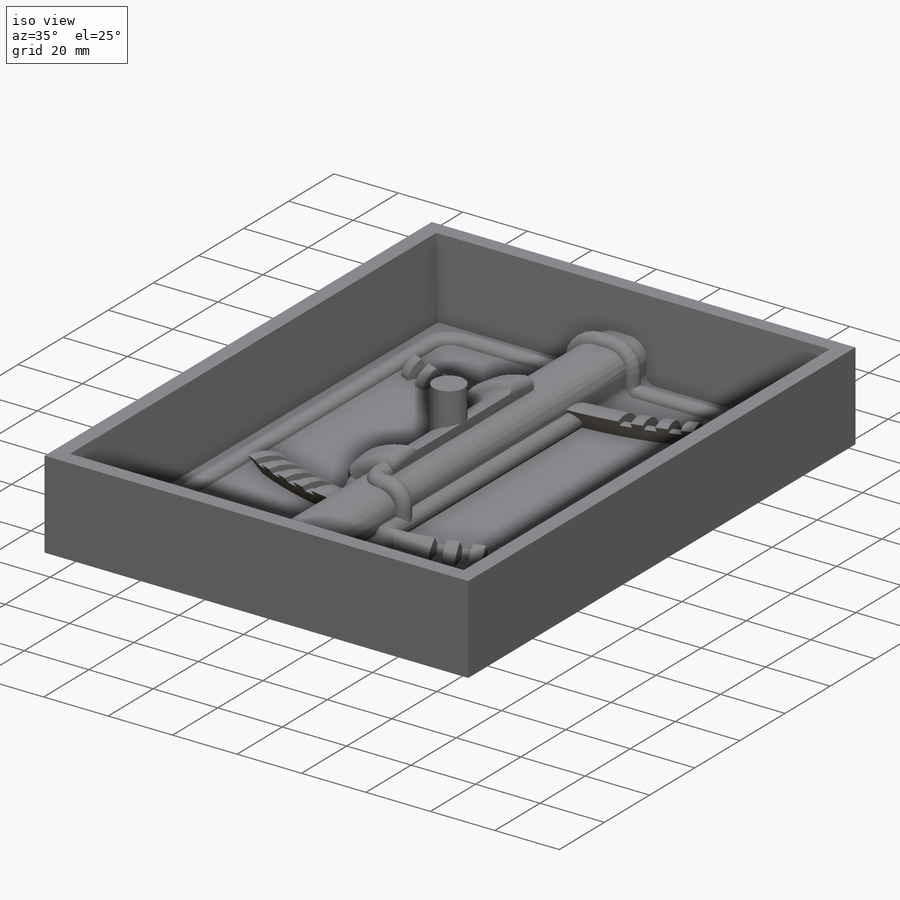
[diagram: iso view]
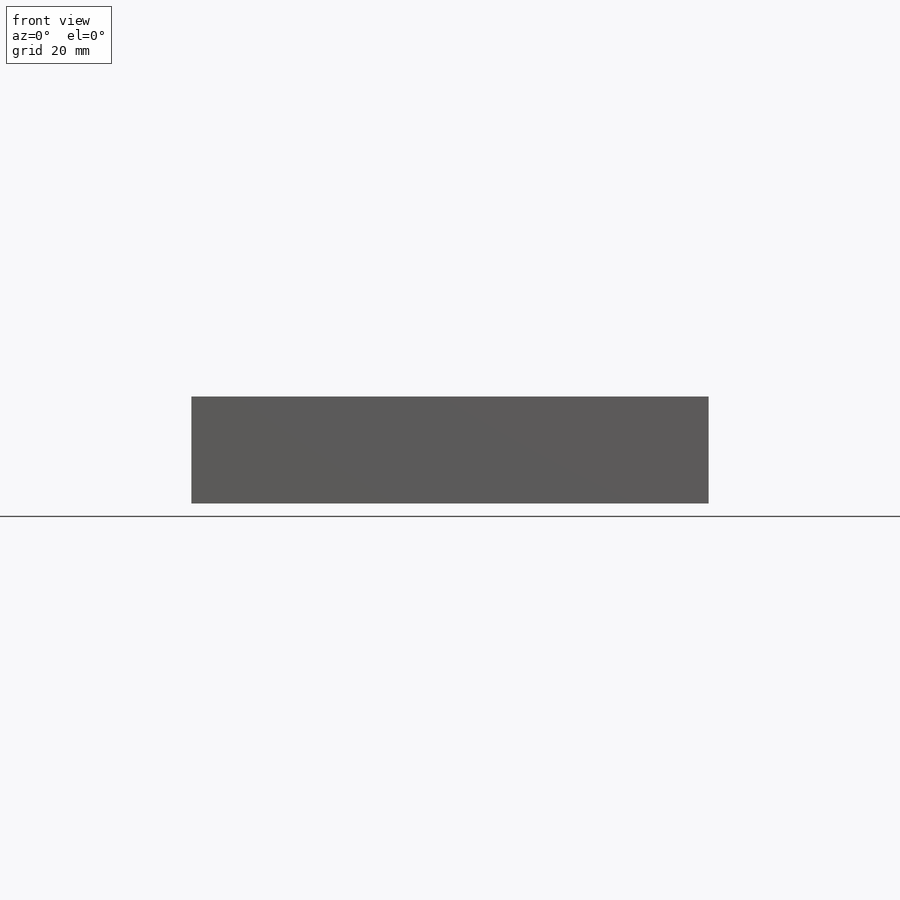
[diagram: front view]
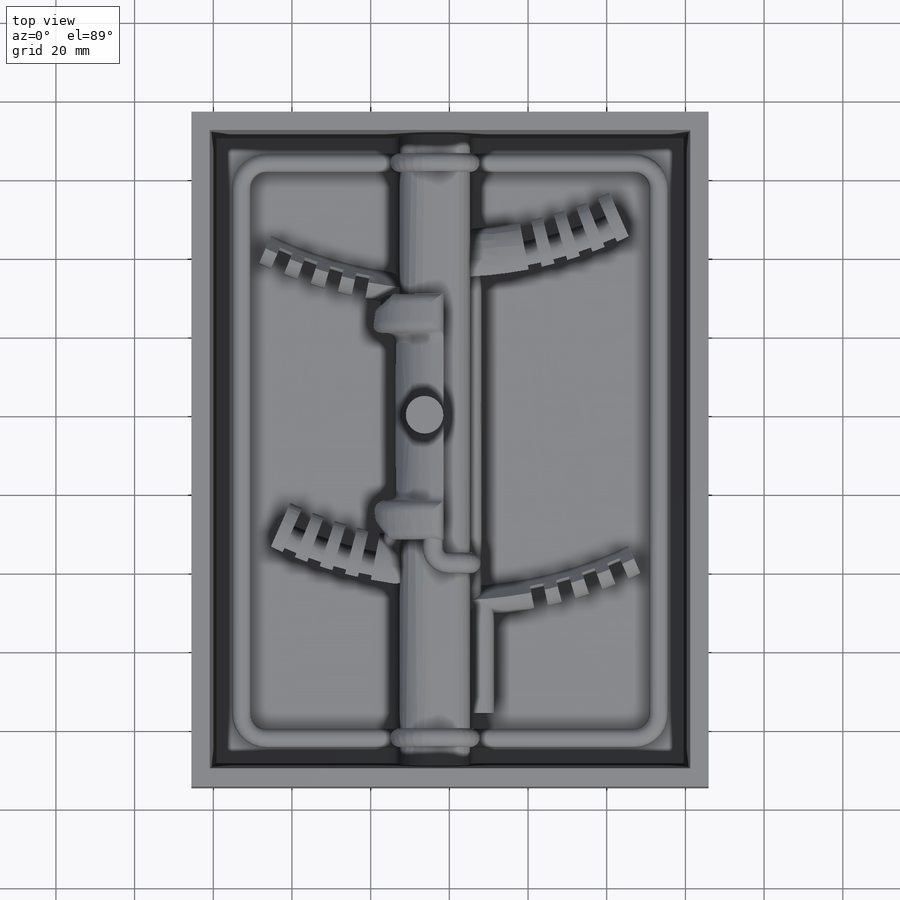
[diagram: top view]
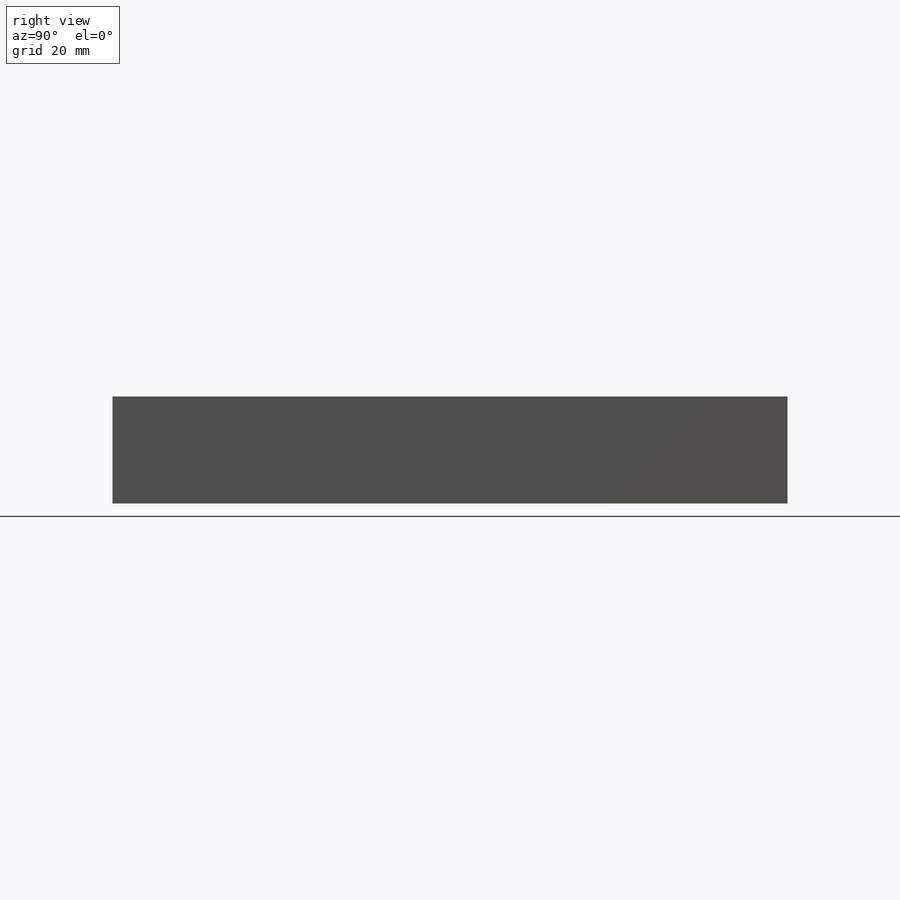
[diagram: right view]
SOLIDWORKS PART (.sldprt)
format: sldprt  version: not decoded by parser v0  size: 6,892,032 bytes
history: native  units: mm
features: sketch x12, extrude x7, delete_body x3, plane x3, boolean_combine x2, material x1, move_body x1, surface_op x1, sweep x1, cut_extrude x1 + 1 further entry (+18 scaffold rows collapsed; 3 parser-record rows omitted)
feature tree (54):
  scaffold x18  (default folders/planes/origin — collapsed)
  material  "Material <not specified>"
  "makerbot_internals"
  parser-record x3  (decoder bookkeeping rows leaked as tree rows — omitted from the tree; the rows remain in map.json)
  move_body  "Body-Move/Copy2"
  delete_body  "Body-Delete1"
  sketch  "Sketch1"  dims[c1.D1=25.4mm c1.D2=12.7mm c1.D3=12.7mm c1.D4=12.7mm c2.D1=13.97mm c2.D2=13.97mm c2.D4=17.145mm]
  plane  "Plane1"  Offset=50.8mm
  sketch  "Sketch2"  dims[c1.D1=2.54mm c1.D2=17.145mm c1.D3=19.05mm c2.D2=1.27mm]
  surface_op  "Surface-Extrude1"
  sketch  "Sketch4"  dims[c1.D1=6.35mm c1.D2=6.35mm c1.D3=6.35mm c1.D4=6.35mm c1.D5=6.35mm c2.D4=6.35mm c2.D3=6.35mm c2.D2=6.35mm c2.D5=6.35mm]
  sketch  "Sketch5"  dims[D1=4.7625mm]
  sweep  "Sweep4"
  sketch  "Sketch9"  dims[c1.D1=1.7145mm c1.D2=1.7145mm c1.D3=1.7145mm c1.D4=1.7145mm c1.D5=1.7145mm c2.D2=0.254mm c2.D3=0.254mm]
  sketch  "Sketch10"
  extrude  "Boss-Extrude1"  Depth=6.35mm
  delete_body  "Body-Delete3"
  boolean_combine  "Combine1"
  sketch  "Sketch6"  dims[D1=0.0mm D2=6.35mm]
  extrude  "Boss-Extrude2"  [1 undecoded]
  extrude  "Boss-Extrude5"  [1 undecoded]
  sketch  "Sketch6<2>"  dims[c1.D1=6.35mm c2.D1=4.0deg]
  delete_body  "Body-Delete4"
  sketch  "Sketch7"  dims[D1=0.0mm D2=6.35mm]
  extrude  "Boss-Extrude3"  [1 undecoded]
  extrude  "Boss-Extrude4"  [1 undecoded]
  sketch  "Sketch7<2>"  dims[D1=6.35mm]
  boolean_combine  "Draft3"
  cut_extrude  "Cut-Extrude2"  [1 undecoded]
  sketch  "Sketch7<3>"  dims[D1=6.35mm]
  sketch  "Sketch8"  dims[D1=9.525mm]
  extrude  "Boss-Extrude6"  [1 undecoded]
  extrude  "Boss-Extrude7"  Depth=5.174mm
  plane  "Plane2"  Offset=3.175mm
  plane  "Plane3"  Offset=4.7625mm
decode coverage: 13 of 28 modeling features carry decoded parameters; 1 rows unclassified (native names shown)
note: 6 parameter values undecoded
summary: no parameter record found for 6 features
note: suppression state not decoded; provenance and decode notes live in map.json
